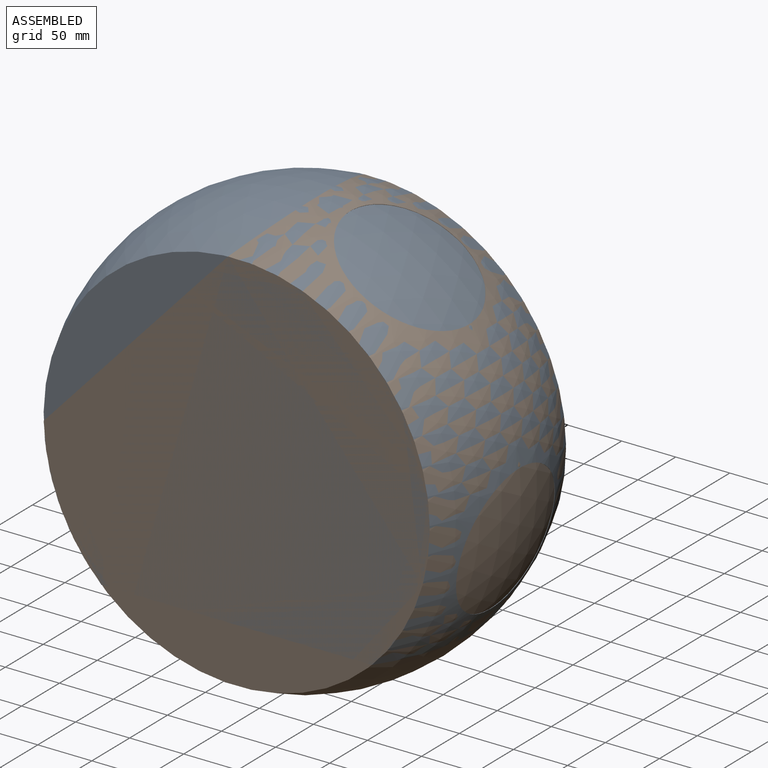
[diagram: assembled view]
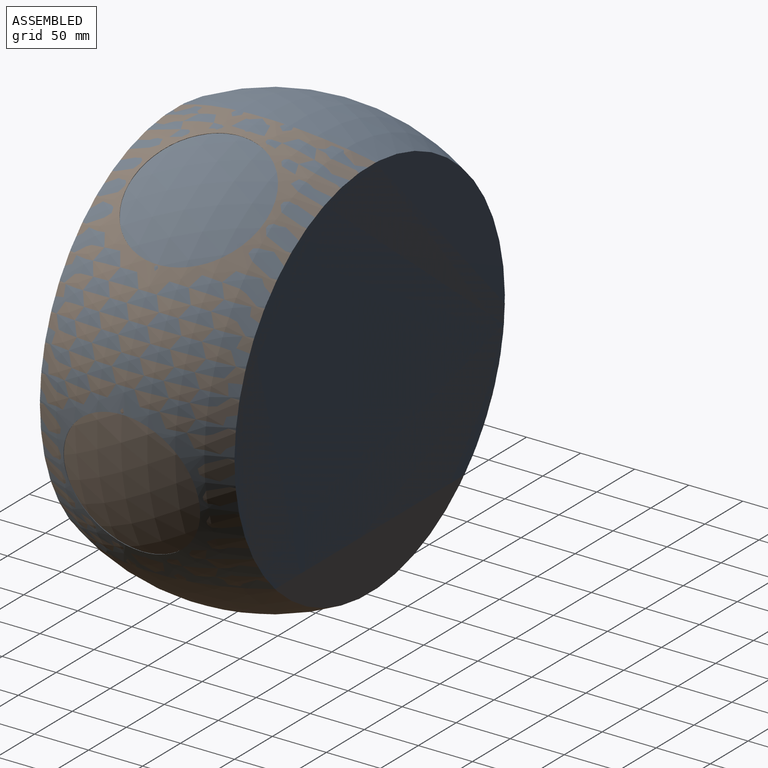
[diagram: assembled view, second angle]
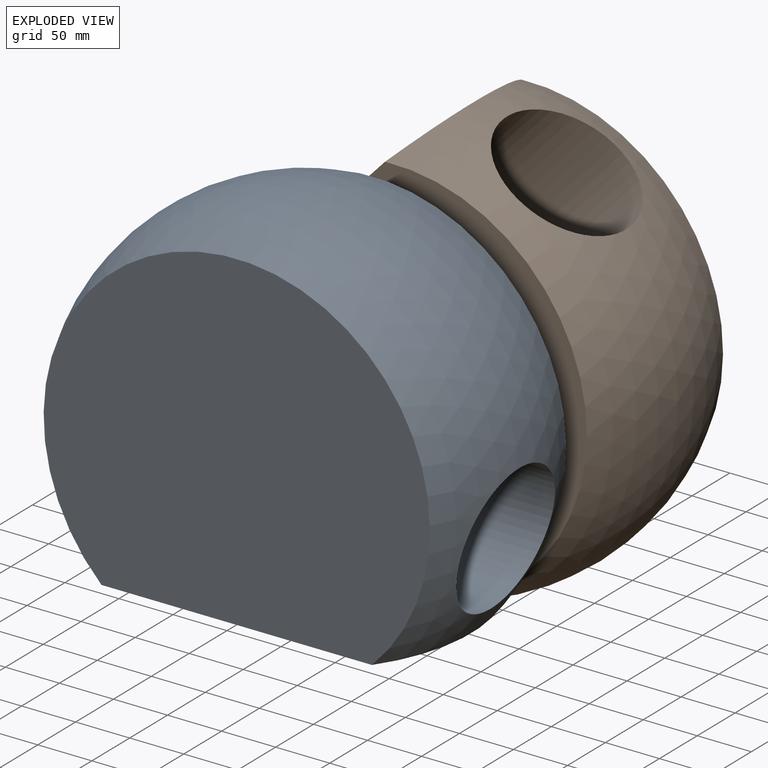
[diagram: exploded view]
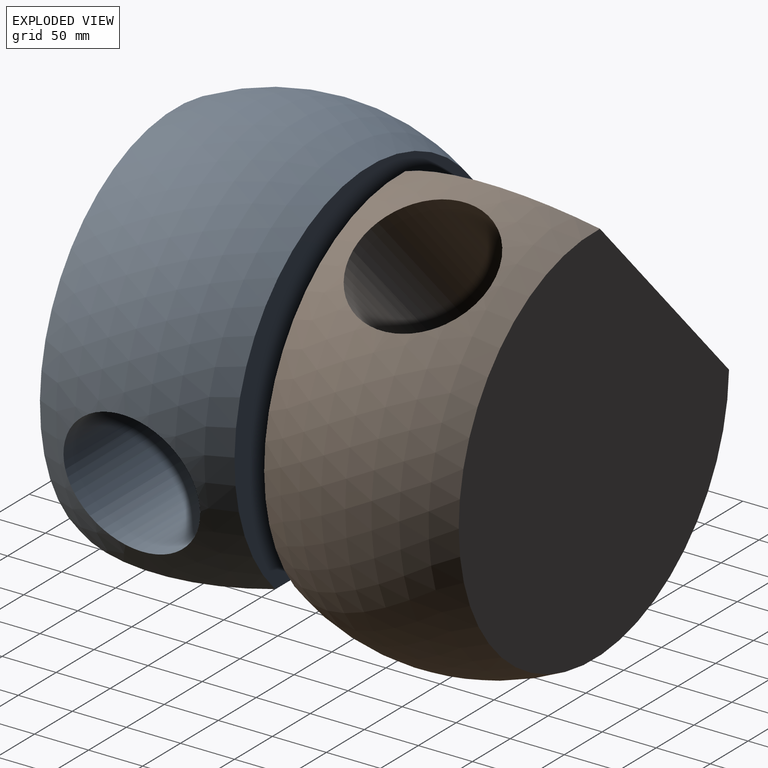
[diagram: exploded view, second angle]
ASSEMBLY  parts=2 mates=2
PART A: 5 faces, bbox 400x342.8x180 mm
  f0: plane 357.21x306.11mm, normal (0,0,1), area 91415.9mm2, adj f1,f4
  f1: sphere r=200mm, area 139425.5mm2, adj f0,f2,f3,f4
  f2: plane 357.21x306.11mm, normal (0,0,-1), area 91415.9mm2, adj f1,f4
  f3: cylinder r=62.5mm len=397.46mm, axis (1,0,0), area 145677.5mm2, adj f1
  f4: plane 308.18x180mm, normal (0,1,0), area 52133.3mm2, adj f0,f1,f2
PART B: same geometry as A
PLACE A rot(axis=(0,-0.71,0.71),180deg) t=(0,0,-14.27)mm
PLACE B rot(axis=(0.85,-0.37,0.37),99.2deg) t=(0,0,-14.27)mm
MATE planar A.f2 <-> B.f2  axis (0,1,0) through (0,0,-14.27)mm
MATE ball A.f1 <-> B.f1  axis (0,-1,0) through (0,-90,-14.27)mm
